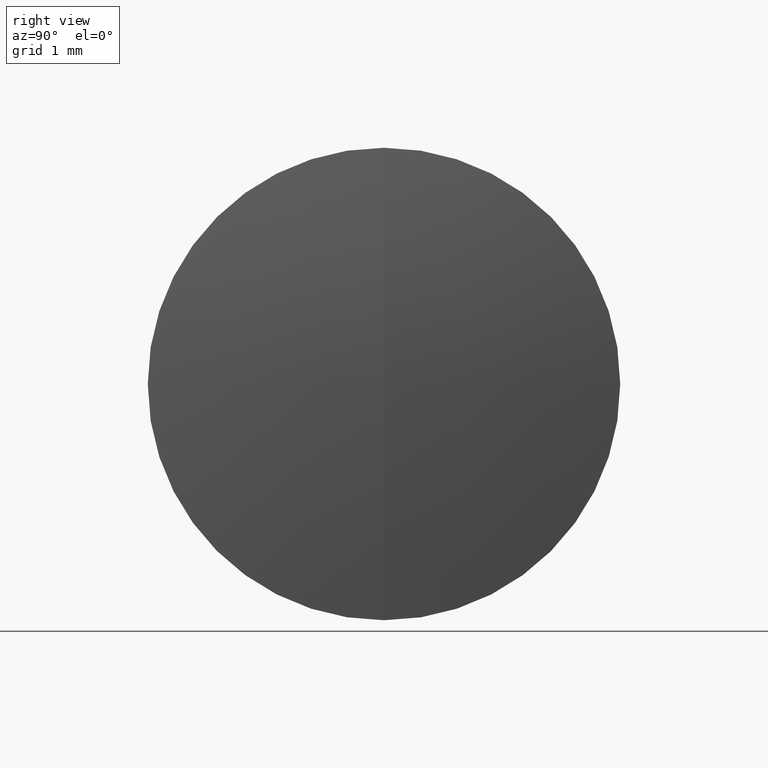
[diagram: clean part render]
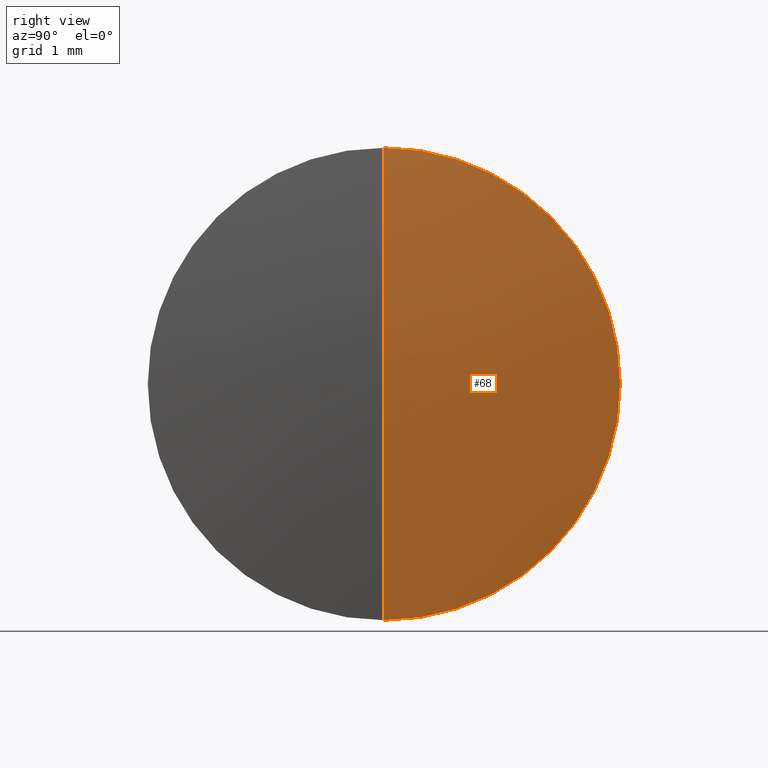
[diagram: same view with one face highlighted and labeled with its STEP entity id]
A machine part, right view. The second image highlights one B-rep face of the part: STEP entity #68.
In plain terms, the highlighted spherical surface has radius 21.7 mm.
Its self-contained STEP definition (entity closure, byte-faithful):
#2 = DIRECTION ( 'NONE',  ( -1.000000000000000000, -0.0000000000000000000, -0.0000000000000000000 ) ) ;
#10 = DIRECTION ( 'NONE',  ( 0.0000000000000000000, 0.0000000000000000000, 1.000000000000000000 ) ) ;
#23 = VERTEX_POINT ( 'NONE', #201 ) ;
#25 = DIRECTION ( 'NONE',  ( 0.0000000000000000000, -1.224646799147353500E-016, 1.000000000000000000 ) ) ;
#26 = CARTESIAN_POINT ( 'NONE',  ( 2.813910375090960900, 3.888253587292846100E-016, -3.174999999999998000 ) ) ;
#33 = ORIENTED_EDGE ( 'NONE', *, *, #124, .T. ) ;
#39 = CARTESIAN_POINT ( 'NONE',  ( -18.65256057380979400, 0.0000000000000000000, 0.0000000000000000000 ) ) ;
#42 = EDGE_LOOP ( 'NONE', ( #114, #33, #119 ) ) ;
#43 = FACE_OUTER_BOUND ( 'NONE', #42, .T. ) ;
#59 = DIRECTION ( 'NONE',  ( 0.0000000000000000000, 1.000000000000000000, 0.0000000000000000000 ) ) ;
#61 = DIRECTION ( 'NONE',  ( 0.0000000000000000000, 0.0000000000000000000, -1.000000000000000000 ) ) ;
#62 = VERTEX_POINT ( 'NONE', #259 ) ;
#68 = ADVANCED_FACE ( 'NONE', ( #43 ), #136, .T. ) ;
#114 = ORIENTED_EDGE ( 'NONE', *, *, #156, .F. ) ;
#119 = ORIENTED_EDGE ( 'NONE', *, *, #142, .F. ) ;
#124 = EDGE_CURVE ( 'NONE', #62, #138, #175, .T. ) ;
#136 = SPHERICAL_SURFACE ( 'NONE', #234, 21.69999999999999900 ) ;
#138 = VERTEX_POINT ( 'NONE', #26 ) ;
#142 = EDGE_CURVE ( 'NONE', #23, #138, #309, .T. ) ;
#156 = EDGE_CURVE ( 'NONE', #62, #23, #304, .T. ) ;
#159 = DIRECTION ( 'NONE',  ( 0.0000000000000000000, 0.0000000000000000000, 1.000000000000000000 ) ) ;
#175 = CIRCLE ( 'NONE', #186, 21.69999999999999900 ) ;
#186 = AXIS2_PLACEMENT_3D ( 'NONE', #247, #215, #25 ) ;
#188 = CARTESIAN_POINT ( 'NONE',  ( 2.813910375090960900, 0.0000000000000000000, 0.0000000000000000000 ) ) ;
#198 = CARTESIAN_POINT ( 'NONE',  ( -18.65256057380979400, 0.0000000000000000000, 0.0000000000000000000 ) ) ;
#201 = CARTESIAN_POINT ( 'NONE',  ( 2.813910375090960900, 0.0000000000000000000, 3.174999999999998000 ) ) ;
#215 = DIRECTION ( 'NONE',  ( -0.0000000000000000000, 1.000000000000000000, 1.224646799147353200E-016 ) ) ;
#228 = DIRECTION ( 'NONE',  ( 0.0000000000000000000, -1.000000000000000000, 0.0000000000000000000 ) ) ;
#234 = AXIS2_PLACEMENT_3D ( 'NONE', #198, #59, #10 ) ;
#247 = CARTESIAN_POINT ( 'NONE',  ( -18.65256057380979400, 0.0000000000000000000, 0.0000000000000000000 ) ) ;
#259 = CARTESIAN_POINT ( 'NONE',  ( 3.047439426190207400, 0.0000000000000000000, 1.328741777074878400E-015 ) ) ;
#283 = AXIS2_PLACEMENT_3D ( 'NONE', #188, #2, #159 ) ;
#304 = CIRCLE ( 'NONE', #321, 21.69999999999999900 ) ;
#309 = CIRCLE ( 'NONE', #283, 3.174999999999998000 ) ;
#321 = AXIS2_PLACEMENT_3D ( 'NONE', #39, #228, #61 ) ;